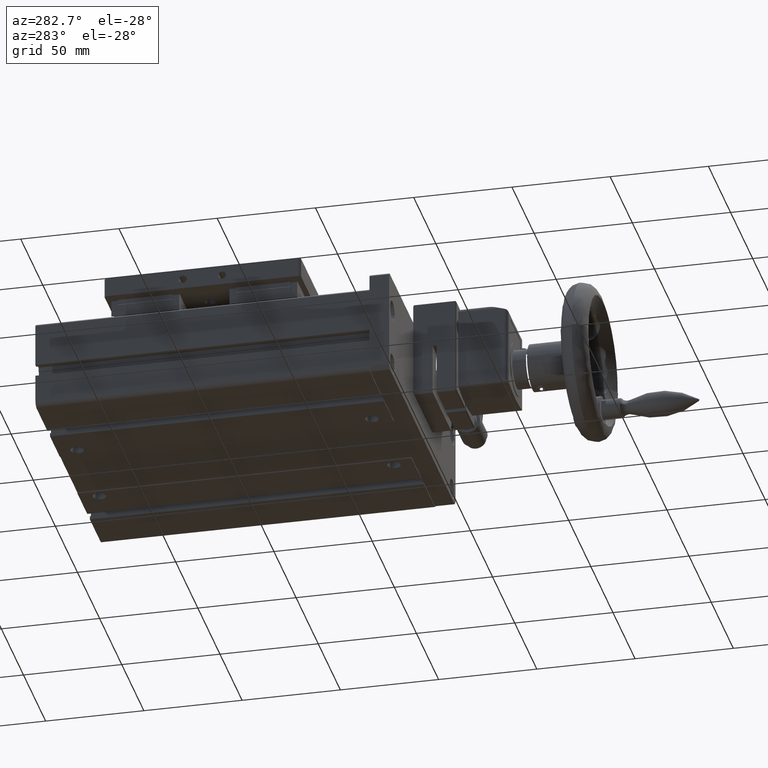
[diagram: clean part render]
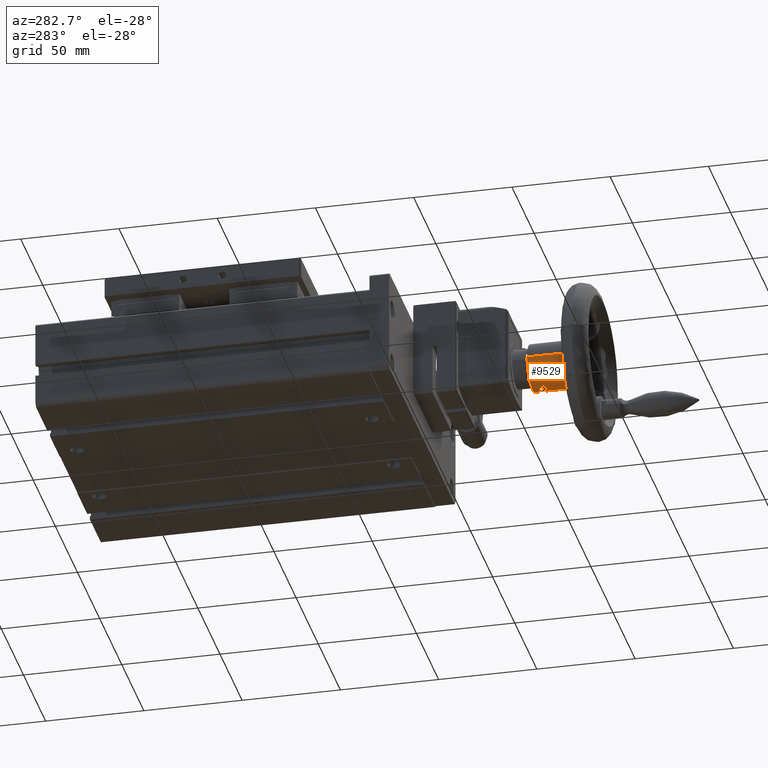
[diagram: same view with one face highlighted and labeled with its STEP entity id]
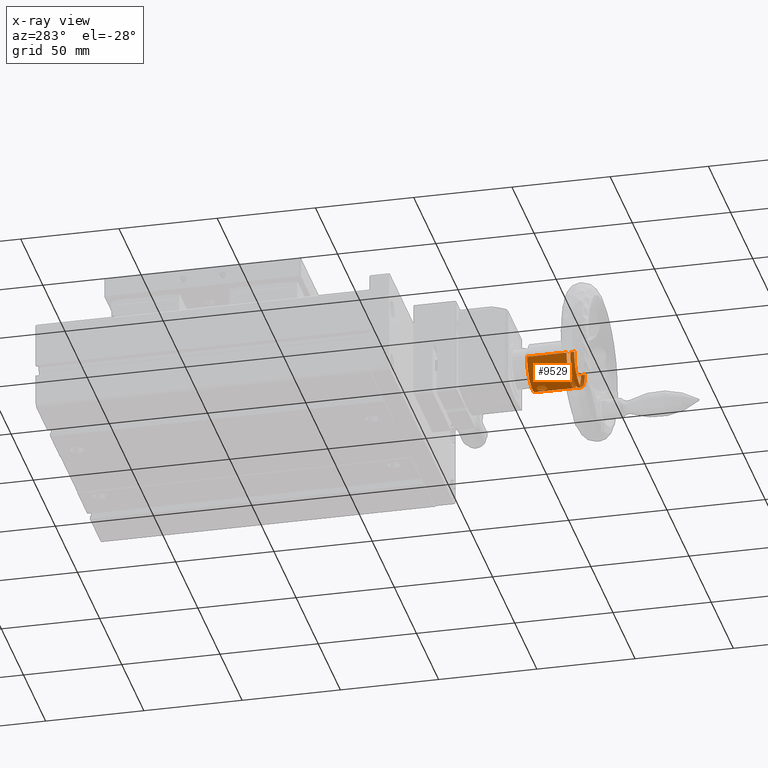
[diagram: x-ray of the same camera — body ghosted, the highlighted face saturated]
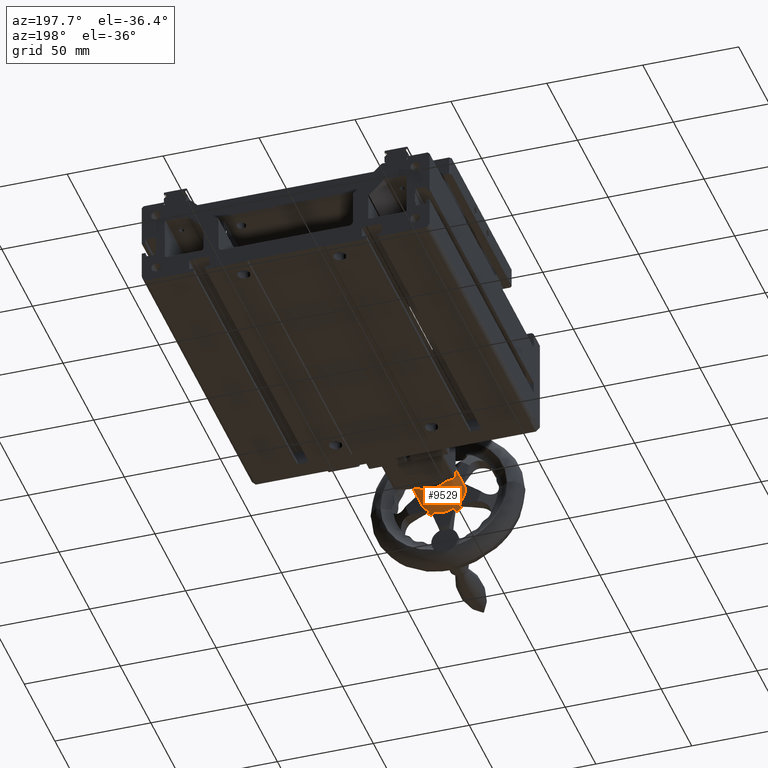
[diagram: same view with one face highlighted and labeled with its STEP entity id]
A machine part, auxiliary view. The second image highlights one B-rep face of the part: STEP entity #9529.
The next image is the same camera in x-ray: the body ghosted, the highlighted face saturated — about 5% of this face is hidden behind the body in this view.
A second angle (auxiliary view) of the same face is appended — the face is thin or edge-on in the first view.
In plain terms, the highlighted cylindrical surface (edge-blend (fillet) strip) has radius 12 mm, axis along (0, 1, -0).
Its self-contained STEP definition (entity closure, byte-faithful):
#107 = CARTESIAN_POINT ( 'NONE',  ( -28.05065879968691789, -156.5472645979107540, -2.497905801952563287 ) ) ;
#268 = CARTESIAN_POINT ( 'NONE',  ( -26.05941388635293521, -155.5712891853190172, -2.369540373258613553 ) ) ;
#425 = CARTESIAN_POINT ( 'NONE',  ( -27.72158855859132842, -156.5309657087920527, -2.500627262930509964 ) ) ;
#453 = ORIENTED_EDGE ( 'NONE', *, *, #10837, .T. ) ;
#460 = AXIS2_PLACEMENT_3D ( 'NONE', #22588, #2151, #25217 ) ;
#508 = CARTESIAN_POINT ( 'NONE',  ( -29.70152316966340322, -155.9295777679105299, -2.353173269003626000 ) ) ;
#587 = CARTESIAN_POINT ( 'NONE',  ( -27.39882561325932642, -156.4664429796373213, -2.493463593952785384 ) ) ;
#1000 = CARTESIAN_POINT ( 'NONE',  ( -29.57426144329009077, -152.0601092516981225, -2.372817105904325707 ) ) ;
#1572 = VECTOR ( 'NONE', #20292, 1000.000000000000000 ) ;
#1704 = DIRECTION ( 'NONE',  ( 4.315567623387590858E-15, 1.000000000000000000, -4.692817071911560187E-16 ) ) ;
#1756 = CARTESIAN_POINT ( 'NONE',  ( -25.80022041722309467, -155.1555444239279780, -2.327862891944127988 ) ) ;
#1789 = VECTOR ( 'NONE', #3494, 1000.000000000000000 ) ;
#1867 = VERTEX_POINT ( 'NONE', #30808 ) ;
#2151 = DIRECTION ( 'NONE',  ( 4.315567623387590858E-15, 1.000000000000000000, -4.692817071911560187E-16 ) ) ;
#2239 = DIRECTION ( 'NONE',  ( -0.9998254834963282711, 4.625929269271484533E-15, 0.01868160997701853732 ) ) ;
#2245 = CARTESIAN_POINT ( 'NONE',  ( -26.16613579395624356, -152.3936937551650033, -2.385152210889166735 ) ) ;
#2460 = VERTEX_POINT ( 'NONE', #10472 ) ;
#2594 = CIRCLE ( 'NONE', #26281, 12.00000000000000355 ) ;
#2756 = ORIENTED_EDGE ( 'NONE', *, *, #9965, .T. ) ;
#2849 = CARTESIAN_POINT ( 'NONE',  ( -27.82647947996275661, -171.0472645979107540, 9.500000000003382183 ) ) ;
#2870 = CARTESIAN_POINT ( 'NONE',  ( -28.05065879968691789, -156.5472645979107540, -2.497905801952563287 ) ) ;
#3098 = CIRCLE ( 'NONE', #11506, 12.00000000000000355 ) ;
#3262 = CARTESIAN_POINT ( 'NONE',  ( -39.82438528191870830, -173.0472645979106971, 9.724179319727605630 ) ) ;
#3300 = CARTESIAN_POINT ( 'NONE',  ( -28.85671952038411092, -151.6753453240093279, -2.456654065597610348 ) ) ;
#3369 = ORIENTED_EDGE ( 'NONE', *, *, #25043, .T. ) ;
#3494 = DIRECTION ( 'NONE',  ( 4.315567623387590858E-15, 1.000000000000000000, -4.692817071911560187E-16 ) ) ;
#3884 = EDGE_CURVE ( 'NONE', #10855, #16494, #13559, .T. ) ;
#4210 = CARTESIAN_POINT ( 'NONE',  ( -15.82857367800670900, -145.4472645979107881, 9.275820680279149855 ) ) ;
#4256 = CARTESIAN_POINT ( 'NONE',  ( -25.56226452999253240, -154.3737100976732961, -2.284497708171401520 ) ) ;
#4364 = CARTESIAN_POINT ( 'NONE',  ( -21.80337996300379544, -171.0472645979110951, -0.8789340593693563131 ) ) ;
#5037 = DIRECTION ( 'NONE',  ( -4.315567623387590858E-15, -1.000000000000000000, 4.692817071911560187E-16 ) ) ;
#5062 = VECTOR ( 'NONE', #1704, 1000.000000000000000 ) ;
#5197 = AXIS2_PLACEMENT_3D ( 'NONE', #28086, #15075, #27603 ) ;
#5292 = CARTESIAN_POINT ( 'NONE',  ( -35.83619223977509449, -169.1832638010629069, 0.5644249482622005765 ) ) ;
#5423 = DIRECTION ( 'NONE',  ( -0.9998254834963282711, 4.625929269271484533E-15, 0.01868160997701853732 ) ) ;
#5555 = VERTEX_POINT ( 'NONE', #19016 ) ;
#5654 = DIRECTION ( 'NONE',  ( 4.315567623387590858E-15, 1.000000000000000000, -4.692817071911560187E-16 ) ) ;
#5751 = EDGE_LOOP ( 'NONE', ( #6388, #24914, #15721, #27360, #18723, #2756, #3369, #453, #11494, #24008, #6985, #29214 ) ) ;
#5786 = AXIS2_PLACEMENT_3D ( 'NONE', #20366, #23023, #20686 ) ;
#5953 = CARTESIAN_POINT ( 'NONE',  ( -30.41807663328983224, -153.2414368243735225, -2.216984586388870859 ) ) ;
#6230 = EDGE_CURVE ( 'NONE', #2460, #21063, #9698, .T. ) ;
#6388 = ORIENTED_EDGE ( 'NONE', *, *, #6586, .F. ) ;
#6473 = VECTOR ( 'NONE', #11757, 1000.000000000000000 ) ;
#6483 = DIRECTION ( 'NONE',  ( -0.9998254834963282711, 4.625929269271486900E-15, 0.01868160997701854772 ) ) ;
#6586 = EDGE_CURVE ( 'NONE', #10404, #11198, #21807, .T. ) ;
#6730 = CARTESIAN_POINT ( 'NONE',  ( -25.62610951251494740, -154.6941973071331233, -2.296585420362930119 ) ) ;
#6931 = VERTEX_POINT ( 'NONE', #18628 ) ;
#6985 = ORIENTED_EDGE ( 'NONE', *, *, #11657, .T. ) ;
#7208 = CARTESIAN_POINT ( 'NONE',  ( -27.39397559806784699, -151.6131065626295822, -2.496003869402008579 ) ) ;
#7539 = EDGE_CURVE ( 'NONE', #9544, #9263, #13011, .T. ) ;
#7772 = EDGE_CURVE ( 'NONE', #18974, #1867, #10220, .T. ) ;
#7825 = DIRECTION ( 'NONE',  ( -4.315567623387590858E-15, -1.000000000000000000, 4.692817071911560187E-16 ) ) ;
#7938 = EDGE_CURVE ( 'NONE', #9263, #9544, #25612, .T. ) ;
#8064 = CARTESIAN_POINT ( 'NONE',  ( -27.82647947996274951, -169.1832638010629353, 9.500000000003380407 ) ) ;
#8091 = CARTESIAN_POINT ( 'NONE',  ( -30.46526020147823388, -153.3975032420254365, -2.206319101643586134 ) ) ;
#8244 = CARTESIAN_POINT ( 'NONE',  ( -30.23073677996313080, -155.3063431745613627, -2.257368759119776414 ) ) ;
#8558 = CARTESIAN_POINT ( 'NONE',  ( -28.69888659556180599, -156.4671611387533687, -2.469318077366715158 ) ) ;
#8605 = VECTOR ( 'NONE', #5037, 1000.000000000000000 ) ;
#8674 = AXIS2_PLACEMENT_3D ( 'NONE', #30377, #17535, #2239 ) ;
#8728 = CARTESIAN_POINT ( 'NONE',  ( -28.37990746733640890, -151.5636422737437954, -2.488310679033553630 ) ) ;
#9193 = ORIENTED_EDGE ( 'NONE', *, *, #13042, .T. ) ;
#9235 = CARTESIAN_POINT ( 'NONE',  ( -27.82647947996276372, -173.0472645979107540, 9.500000000003382183 ) ) ;
#9263 = VERTEX_POINT ( 'NONE', #2870 ) ;
#9529 = ADVANCED_FACE ( 'NONE', ( #27868, #10371, #24880 ), #14994, .T. ) ;
#9544 = VERTEX_POINT ( 'NONE', #28496 ) ;
#9698 = CIRCLE ( 'NONE', #8674, 12.00000000000000355 ) ;
#9798 = DIRECTION ( 'NONE',  ( -4.315567623387590858E-15, -1.000000000000000000, 4.692817071911560187E-16 ) ) ;
#9962 = CARTESIAN_POINT ( 'NONE',  ( -34.23309756304961837, -145.4472645979107028, -0.6466863919899825675 ) ) ;
#9965 = EDGE_CURVE ( 'NONE', #31961, #5555, #27886, .T. ) ;
#10063 = DIRECTION ( 'NONE',  ( 4.315567623387590858E-15, 1.000000000000000000, -4.692817071911560187E-16 ) ) ;
#10168 = CARTESIAN_POINT ( 'NONE',  ( -20.15616113219794414, -171.0472645979110951, 0.2714455929501979892 ) ) ;
#10220 = LINE ( 'NONE', #27232, #12292 ) ;
#10354 = DIRECTION ( 'NONE',  ( 4.315567623387590858E-15, 1.000000000000000000, -4.692817071911560187E-16 ) ) ;
#10371 = FACE_BOUND ( 'NONE', #12032, .T. ) ;
#10390 = CARTESIAN_POINT ( 'NONE',  ( -29.15978742516304933, -156.2931821047739334, -2.426664423539554249 ) ) ;
#10404 = VERTEX_POINT ( 'NONE', #32488 ) ;
#10444 = CIRCLE ( 'NONE', #25179, 11.99999999999999645 ) ;
#10472 = CARTESIAN_POINT ( 'NONE',  ( -39.82438528191870120, -171.0472645979106971, 9.724179319727600301 ) ) ;
#10546 = CARTESIAN_POINT ( 'NONE',  ( -30.46525442774246528, -154.6972965512192104, -2.206320822498020195 ) ) ;
#10726 = LINE ( 'NONE', #17658, #1572 ) ;
#10744 = ORIENTED_EDGE ( 'NONE', *, *, #28860, .T. ) ;
#10837 = EDGE_CURVE ( 'NONE', #16083, #1867, #3098, .T. ) ;
#10855 = VERTEX_POINT ( 'NONE', #30559 ) ;
#11198 = VERTEX_POINT ( 'NONE', #22819 ) ;
#11494 = ORIENTED_EDGE ( 'NONE', *, *, #7772, .F. ) ;
#11506 = AXIS2_PLACEMENT_3D ( 'NONE', #20680, #23326, #5423 ) ;
#11636 = CARTESIAN_POINT ( 'NONE',  ( -15.82857367800659354, -169.1832638010629921, 9.275820680279156960 ) ) ;
#11657 = EDGE_CURVE ( 'NONE', #6931, #13366, #10726, .T. ) ;
#11757 = DIRECTION ( 'NONE',  ( 4.315567623387590858E-15, 1.000000000000000000, -4.692817071911560187E-16 ) ) ;
#11791 = DIRECTION ( 'NONE',  ( -0.9998254834963282711, 4.625929269271484533E-15, 0.01868160997701853732 ) ) ;
#12032 = EDGE_LOOP ( 'NONE', ( #18641, #18336 ) ) ;
#12292 = VECTOR ( 'NONE', #10063, 1000.000000000000000 ) ;
#12461 = AXIS2_PLACEMENT_3D ( 'NONE', #31356, #23639, #30858 ) ;
#12748 = LINE ( 'NONE', #9962, #24872 ) ;
#13011 = B_SPLINE_CURVE_WITH_KNOTS ( 'NONE', 3,
 ( #26981, #29749, #7208, #27320, #14771, #24496, #24816, #2245, #17391, #16761, #27466, #14922, #24979, #29267, #4256, #6730, #24329, #1756, #18029, #268, #27955, #22684, #28270, #23160, #587, #425, #20035, #107 ),
 .UNSPECIFIED., .F., .F.,
 ( 4, 2, 2, 2, 2, 2, 2, 2, 2, 2, 2, 2, 2, 4 ),
 ( 0.007837644680299722319, 0.008817095033563995821, 0.009306820210196116092, 0.009796545386828238097, 0.01028627056346035837, 0.01077599574009247864, 0.01175544609335672092, 0.01224517126998888109, 0.01273489644662104472, 0.01322462162325320663, 0.01371434679988536853, 0.01469379715314969928, 0.01518352232978186465, 0.01567324750641403003 ),
 .UNSPECIFIED. ) ;
#13042 = EDGE_CURVE ( 'NONE', #15039, #10855, #18624, .T. ) ;
#13180 = CARTESIAN_POINT ( 'NONE',  ( -30.54536788977672401, -153.8846938545946728, -2.187927353440032086 ) ) ;
#13339 = CARTESIAN_POINT ( 'NONE',  ( -30.52905917131974434, -153.7185034512094717, -2.191754941736169915 ) ) ;
#13366 = VERTEX_POINT ( 'NONE', #10168 ) ;
#13559 = CIRCLE ( 'NONE', #5197, 11.99999999999999645 ) ;
#13858 = DIRECTION ( 'NONE',  ( 4.315567623387590858E-15, 1.000000000000000000, -4.692817071911560187E-16 ) ) ;
#13984 = CARTESIAN_POINT ( 'NONE',  ( -35.83619223977510870, -171.0472645979106971, 0.5644249482622022418 ) ) ;
#14241 = CARTESIAN_POINT ( 'NONE',  ( -39.82438528191858751, -145.4472645979106744, 9.724179319727593196 ) ) ;
#14497 = EDGE_CURVE ( 'NONE', #10404, #22062, #21232, .T. ) ;
#14771 = CARTESIAN_POINT ( 'NONE',  ( -26.79564643636723176, -151.8783466999343545, -2.456426183797777885 ) ) ;
#14922 = CARTESIAN_POINT ( 'NONE',  ( -25.61186764980998021, -153.3908646883534175, -2.294575951014789617 ) ) ;
#14994 = CYLINDRICAL_SURFACE ( 'NONE', #460, 12.00000000000000355 ) ;
#15039 = VERTEX_POINT ( 'NONE', #4364 ) ;
#15075 = DIRECTION ( 'NONE',  ( 4.315567623387590858E-15, 1.000000000000000000, -4.692817071911560187E-16 ) ) ;
#15654 = CARTESIAN_POINT ( 'NONE',  ( -28.21629931562908666, -156.5472645979107824, -2.494810830313711314 ) ) ;
#15721 = ORIENTED_EDGE ( 'NONE', *, *, #19754, .T. ) ;
#15897 = VERTEX_POINT ( 'NONE', #29744 ) ;
#16083 = VERTEX_POINT ( 'NONE', #27461 ) ;
#16466 = CARTESIAN_POINT ( 'NONE',  ( -28.21404170584100157, -151.5472645979107540, -2.494853013460908819 ) ) ;
#16494 = VERTEX_POINT ( 'NONE', #26727 ) ;
#16761 = CARTESIAN_POINT ( 'NONE',  ( -25.87898301825491743, -152.7924150778575267, -2.341270925662147118 ) ) ;
#16800 = CARTESIAN_POINT ( 'NONE',  ( -28.05065879968689657, -151.5472645979107256, -2.497905801952565064 ) ) ;
#17079 = CARTESIAN_POINT ( 'NONE',  ( -27.82647947996275661, -171.0472645979107540, 9.500000000003382183 ) ) ;
#17209 = LINE ( 'NONE', #14241, #6473 ) ;
#17391 = CARTESIAN_POINT ( 'NONE',  ( -26.06050495100732789, -152.5219206592093144, -2.369699809446599303 ) ) ;
#17455 = EDGE_CURVE ( 'NONE', #13366, #11198, #27097, .T. ) ;
#17535 = DIRECTION ( 'NONE',  ( -4.315567623387590858E-15, -1.000000000000000000, 4.692817071911560187E-16 ) ) ;
#17603 = VERTEX_POINT ( 'NONE', #21947 ) ;
#17658 = CARTESIAN_POINT ( 'NONE',  ( -20.15616113219772387, -145.4472645979107597, 0.2714455929501858322 ) ) ;
#17994 = DIRECTION ( 'NONE',  ( -0.9998254834963282711, 4.625929269271484533E-15, 0.01868160997702027204 ) ) ;
#18029 = CARTESIAN_POINT ( 'NONE',  ( -25.87714551503287908, -155.2990645112115544, -2.340971521699848346 ) ) ;
#18114 = CARTESIAN_POINT ( 'NONE',  ( -30.03484623548107990, -152.5222102711169327, -2.295403404763082023 ) ) ;
#18276 = CARTESIAN_POINT ( 'NONE',  ( -30.04533557013808220, -155.5845670092832620, -2.295367700269715261 ) ) ;
#18290 = EDGE_LOOP ( 'NONE', ( #27181, #10744, #9193, #30038, #22807 ) ) ;
#18336 = ORIENTED_EDGE ( 'NONE', *, *, #7539, .F. ) ;
#18432 = CARTESIAN_POINT ( 'NONE',  ( -28.85772280102773735, -156.4188598744229353, -2.456570225663253115 ) ) ;
#18624 = LINE ( 'NONE', #28701, #1789 ) ;
#18628 = CARTESIAN_POINT ( 'NONE',  ( -20.15616113219782690, -169.1832638010629637, 0.2714455929501962683 ) ) ;
#18641 = ORIENTED_EDGE ( 'NONE', *, *, #7938, .F. ) ;
#18723 = ORIENTED_EDGE ( 'NONE', *, *, #20866, .F. ) ;
#18812 = EDGE_CURVE ( 'NONE', #15897, #17603, #12748, .T. ) ;
#18974 = VERTEX_POINT ( 'NONE', #11636 ) ;
#19016 = CARTESIAN_POINT ( 'NONE',  ( -39.82438528191868699, -169.1832638010628784, 9.724179319727600301 ) ) ;
#19754 = EDGE_CURVE ( 'NONE', #22062, #2460, #26037, .T. ) ;
#20035 = CARTESIAN_POINT ( 'NONE',  ( -27.88506143622162270, -156.5472645979107540, -2.500999967292961479 ) ) ;
#20292 = DIRECTION ( 'NONE',  ( -4.315567623387590858E-15, -1.000000000000000000, 4.692817071911560187E-16 ) ) ;
#20366 = CARTESIAN_POINT ( 'NONE',  ( -27.82647947996274951, -169.1832638010629353, 9.500000000003380407 ) ) ;
#20426 = CARTESIAN_POINT ( 'NONE',  ( -30.52934510509884447, -154.3743444834214813, -2.191689263606791727 ) ) ;
#20680 = CARTESIAN_POINT ( 'NONE',  ( -27.82647947996266069, -149.0472645979107256, 9.500000000003371525 ) ) ;
#20686 = DIRECTION ( 'NONE',  ( -0.9998254834963282711, 4.625929269271486900E-15, 0.01868160997701854772 ) ) ;
#20743 = CARTESIAN_POINT ( 'NONE',  ( -30.21502519122663699, -152.7925303359697011, -2.260241264241907633 ) ) ;
#20866 = EDGE_CURVE ( 'NONE', #31961, #21063, #27573, .T. ) ;
#20916 = CARTESIAN_POINT ( 'NONE',  ( -28.37901834292649639, -156.5309603837019665, -2.488343097252436742 ) ) ;
#21063 = VERTEX_POINT ( 'NONE', #13984 ) ;
#21081 = CARTESIAN_POINT ( 'NONE',  ( -29.30292439800366822, -156.2163417795196381, -2.409608718275026096 ) ) ;
#21232 = CIRCLE ( 'NONE', #29127, 11.99999999999999645 ) ;
#21807 = LINE ( 'NONE', #4210, #5062 ) ;
#21947 = CARTESIAN_POINT ( 'NONE',  ( -34.23309756304976048, -171.0472645979110382, -0.6466863919898594437 ) ) ;
#22062 = VERTEX_POINT ( 'NONE', #3262 ) ;
#22588 = CARTESIAN_POINT ( 'NONE',  ( -27.82647947996264648, -145.4472645979107313, 9.500000000003369749 ) ) ;
#22684 = CARTESIAN_POINT ( 'NONE',  ( -26.50978478749514267, -156.0437573516997247, -2.429802296878708301 ) ) ;
#22807 = ORIENTED_EDGE ( 'NONE', *, *, #28117, .T. ) ;
#22819 = CARTESIAN_POINT ( 'NONE',  ( -15.82857367800681914, -171.0472645979108108, 9.275820680279156960 ) ) ;
#23023 = DIRECTION ( 'NONE',  ( 4.315567623387590858E-15, 1.000000000000000000, -4.692817071911560187E-16 ) ) ;
#23082 = CARTESIAN_POINT ( 'NONE',  ( -29.57372016054242181, -156.0348830066814685, -2.372902737854340582 ) ) ;
#23160 = CARTESIAN_POINT ( 'NONE',  ( -27.23996730638006625, -156.4178899392004496, -2.486607021717024413 ) ) ;
#23230 = CARTESIAN_POINT ( 'NONE',  ( -30.29283538706162560, -152.9381887580258024, -2.243985360273813789 ) ) ;
#23235 = CARTESIAN_POINT ( 'NONE',  ( -39.82438528191858751, -145.4472645979106744, 9.724179319727593196 ) ) ;
#23326 = DIRECTION ( 'NONE',  ( -4.315567623387590858E-15, -1.000000000000000000, 4.692817071911560187E-16 ) ) ;
#23361 = DIRECTION ( 'NONE',  ( -0.9998254834963282711, 4.625929269271486900E-15, 0.01868160997701854772 ) ) ;
#23392 = CARTESIAN_POINT ( 'NONE',  ( -28.70105458797802456, -151.6279053454637165, -2.469168469642263553 ) ) ;
#23562 = CARTESIAN_POINT ( 'NONE',  ( -28.05065879968691789, -156.5472645979107540, -2.497905801952563287 ) ) ;
#23639 = DIRECTION ( 'NONE',  ( 4.315567623387590858E-15, 1.000000000000000000, -4.692817071911560187E-16 ) ) ;
#24008 = ORIENTED_EDGE ( 'NONE', *, *, #31580, .T. ) ;
#24034 = CIRCLE ( 'NONE', #12461, 11.99999999999999645 ) ;
#24329 = CARTESIAN_POINT ( 'NONE',  ( -25.67463153149057575, -154.8536267746661110, -2.305660370628141109 ) ) ;
#24496 = CARTESIAN_POINT ( 'NONE',  ( -26.52312815594755335, -152.0602777930432410, -2.429795437414738579 ) ) ;
#24816 = CARTESIAN_POINT ( 'NONE',  ( -26.39729912360024144, -152.1633816834515756, -2.415159576801841013 ) ) ;
#24872 = VECTOR ( 'NONE', #9798, 1000.000000000000000 ) ;
#24880 = FACE_BOUND ( 'NONE', #18290, .T. ) ;
#24914 = ORIENTED_EDGE ( 'NONE', *, *, #14497, .T. ) ;
#24979 = CARTESIAN_POINT ( 'NONE',  ( -25.54633287973794253, -153.7160255594559999, -2.281380713091602619 ) ) ;
#25043 = EDGE_CURVE ( 'NONE', #5555, #16083, #17209, .T. ) ;
#25179 = AXIS2_PLACEMENT_3D ( 'NONE', #8064, #10354, #23361 ) ;
#25217 = DIRECTION ( 'NONE',  ( -0.9998254834963282711, 4.625929269271484533E-15, 0.01868160997701853732 ) ) ;
#25612 = B_SPLINE_CURVE_WITH_KNOTS ( 'NONE', 3,
 ( #23562, #15654, #20916, #8558, #18432, #10390, #21081, #23082, #508, #18276, #8244, #30948, #10546, #20426, #30611, #13180, #13339, #8091, #5953, #23230, #20743, #18114, #28199, #30785, #1000, #28354, #25867, #3300, #23392, #8728, #16466, #16800 ),
 .UNSPECIFIED., .F., .F.,
 ( 4, 2, 2, 2, 2, 2, 2, 2, 2, 2, 2, 2, 2, 2, 2, 4 ),
 ( 0.000000000000000000, 0.0004898527925187798077, 0.0009797055850375596155, 0.001469558377556339640, 0.001959411170075119231, 0.002939116755112620733, 0.003428969547631330935, 0.003918822340150041571, 0.004408675132668750905, 0.004898527925187461107, 0.005388380717706172177, 0.005878233510224882379, 0.006368086302743592580, 0.006857939095262301915, 0.007347791887781012984, 0.007837644680299722319 ),
 .UNSPECIFIED. ) ;
#25867 = CARTESIAN_POINT ( 'NONE',  ( -29.15837142029481655, -151.8006652608121954, -2.426819980386133224 ) ) ;
#26037 = LINE ( 'NONE', #23235, #26555 ) ;
#26281 = AXIS2_PLACEMENT_3D ( 'NONE', #17079, #27151, #11791 ) ;
#26555 = VECTOR ( 'NONE', #5654, 1000.000000000000000 ) ;
#26727 = CARTESIAN_POINT ( 'NONE',  ( -28.05065879968697473, -169.1832638010629353, -2.497905801952809757 ) ) ;
#26981 = CARTESIAN_POINT ( 'NONE',  ( -28.05065879968689657, -151.5472645979107256, -2.497905801952565064 ) ) ;
#27097 = CIRCLE ( 'NONE', #31761, 12.00000000000000355 ) ;
#27098 = CARTESIAN_POINT ( 'NONE',  ( -35.83619223977515844, -185.4472645979107313, 0.5644249482622092362 ) ) ;
#27151 = DIRECTION ( 'NONE',  ( -4.315567623387590858E-15, -1.000000000000000000, 4.692817071911560187E-16 ) ) ;
#27181 = ORIENTED_EDGE ( 'NONE', *, *, #18812, .T. ) ;
#27232 = CARTESIAN_POINT ( 'NONE',  ( -15.82857367800670900, -145.4472645979107881, 9.275820680279149855 ) ) ;
#27320 = CARTESIAN_POINT ( 'NONE',  ( -26.94191168048425666, -151.8002944523055362, -2.468305306880581806 ) ) ;
#27360 = ORIENTED_EDGE ( 'NONE', *, *, #6230, .T. ) ;
#27461 = CARTESIAN_POINT ( 'NONE',  ( -39.82438528191860172, -149.0472645979106687, 9.724179319727591420 ) ) ;
#27466 = CARTESIAN_POINT ( 'NONE',  ( -25.80176451987746944, -152.9357399848635168, -2.328130079855159629 ) ) ;
#27573 = LINE ( 'NONE', #27098, #8605 ) ;
#27603 = DIRECTION ( 'NONE',  ( -0.9998254834963282711, 4.625929269271486900E-15, 0.01868160997701854772 ) ) ;
#27868 = FACE_OUTER_BOUND ( 'NONE', #5751, .T. ) ;
#27886 = CIRCLE ( 'NONE', #5786, 11.99999999999999645 ) ;
#27955 = CARTESIAN_POINT ( 'NONE',  ( -26.16454789851311347, -155.6989805085155467, -2.384925340845293729 ) ) ;
#28086 = CARTESIAN_POINT ( 'NONE',  ( -27.82647947996274951, -169.1832638010629353, 9.500000000003380407 ) ) ;
#28117 = EDGE_CURVE ( 'NONE', #16494, #15897, #10444, .T. ) ;
#28199 = CARTESIAN_POINT ( 'NONE',  ( -29.93127948374601743, -152.3954239638048023, -2.314550527258991242 ) ) ;
#28270 = CARTESIAN_POINT ( 'NONE',  ( -26.78838387733806670, -156.2301790504641303, -2.458818303302388042 ) ) ;
#28354 = CARTESIAN_POINT ( 'NONE',  ( -29.30449780310663854, -151.8791421780692303, -2.409407611549679640 ) ) ;
#28496 = CARTESIAN_POINT ( 'NONE',  ( -28.05065879968689657, -151.5472645979107256, -2.497905801952565064 ) ) ;
#28701 = CARTESIAN_POINT ( 'NONE',  ( -21.80337996300375636, -145.4472645979107597, -0.8789340593694707771 ) ) ;
#28860 = EDGE_CURVE ( 'NONE', #17603, #15039, #2594, .T. ) ;
#29127 = AXIS2_PLACEMENT_3D ( 'NONE', #9235, #13858, #6483 ) ;
#29214 = ORIENTED_EDGE ( 'NONE', *, *, #17455, .T. ) ;
#29267 = CARTESIAN_POINT ( 'NONE',  ( -25.54609816304161640, -154.2111130133409063, -2.281335283222722499 ) ) ;
#29744 = CARTESIAN_POINT ( 'NONE',  ( -34.23309756304972495, -169.1832638010629069, -0.6466863919899704660 ) ) ;
#29749 = CARTESIAN_POINT ( 'NONE',  ( -27.72397811603260465, -151.5472645979107256, -2.504009788317978824 ) ) ;
#30038 = ORIENTED_EDGE ( 'NONE', *, *, #3884, .T. ) ;
#30377 = CARTESIAN_POINT ( 'NONE',  ( -27.82647947996275661, -171.0472645979107540, 9.500000000003382183 ) ) ;
#30559 = CARTESIAN_POINT ( 'NONE',  ( -21.80337996300381675, -169.1832638010629637, -0.8789340593694291437 ) ) ;
#30611 = CARTESIAN_POINT ( 'NONE',  ( -30.54523879834107802, -154.2118167052030344, -2.187957382410473439 ) ) ;
#30785 = CARTESIAN_POINT ( 'NONE',  ( -29.69968986303841163, -152.1631967960031204, -2.353475021183406124 ) ) ;
#30808 = CARTESIAN_POINT ( 'NONE',  ( -15.82857367800671966, -149.0472645979107824, 9.275820680279155184 ) ) ;
#30858 = DIRECTION ( 'NONE',  ( -0.9998254834963282711, 4.625929269271486900E-15, 0.01868160997701854772 ) ) ;
#30948 = CARTESIAN_POINT ( 'NONE',  ( -30.41721517881161674, -154.8553560255926413, -2.217172520035854077 ) ) ;
#31356 = CARTESIAN_POINT ( 'NONE',  ( -27.82647947996274951, -169.1832638010629353, 9.500000000003380407 ) ) ;
#31580 = EDGE_CURVE ( 'NONE', #18974, #6931, #24034, .T. ) ;
#31761 = AXIS2_PLACEMENT_3D ( 'NONE', #2849, #7825, #17994 ) ;
#31961 = VERTEX_POINT ( 'NONE', #5292 ) ;
#32488 = CARTESIAN_POINT ( 'NONE',  ( -15.82857367800682624, -173.0472645979108108, 9.275820680279158736 ) ) ;